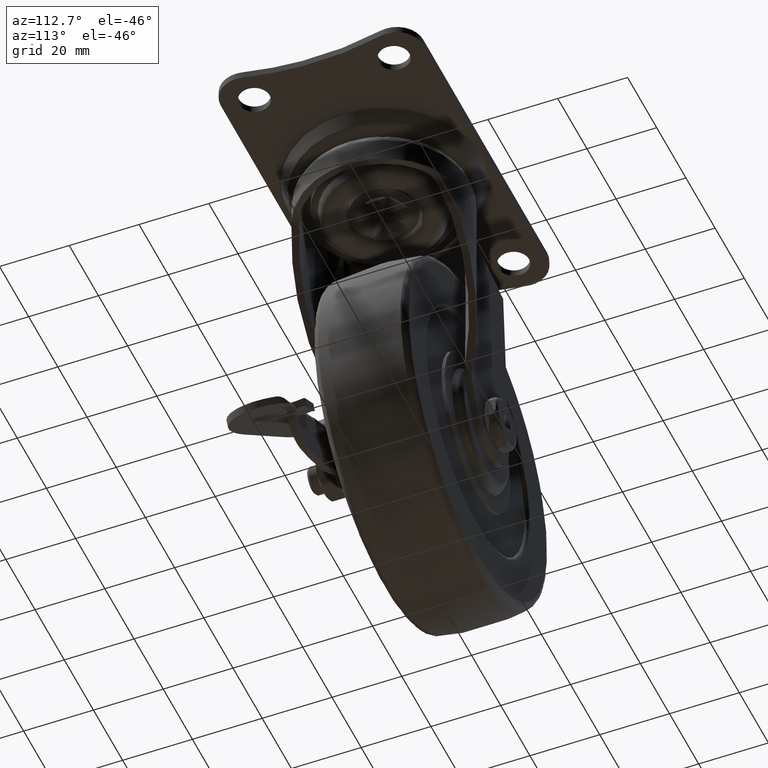
[diagram: clean part render]
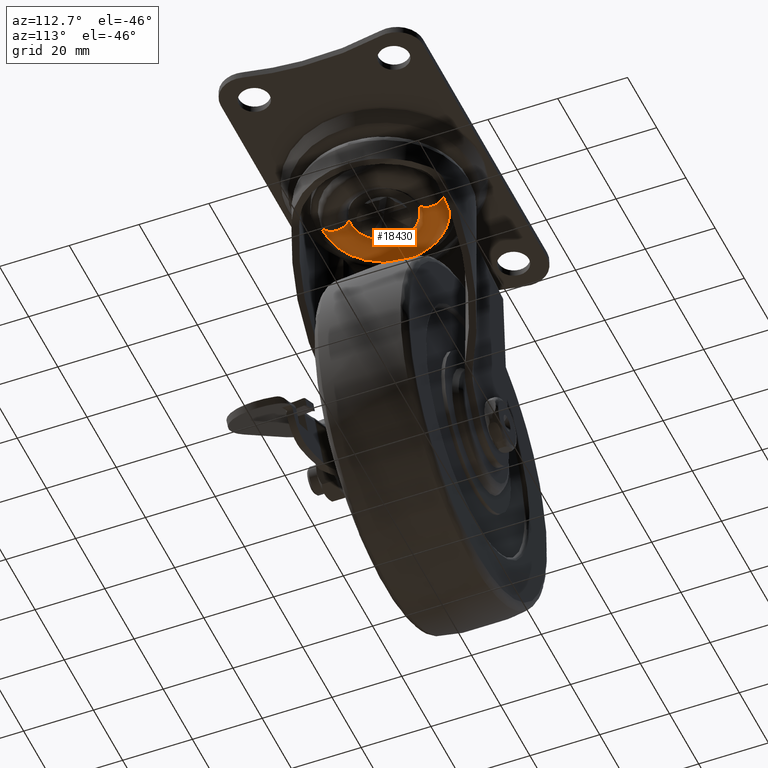
[diagram: same view with one face highlighted and labeled with its STEP entity id]
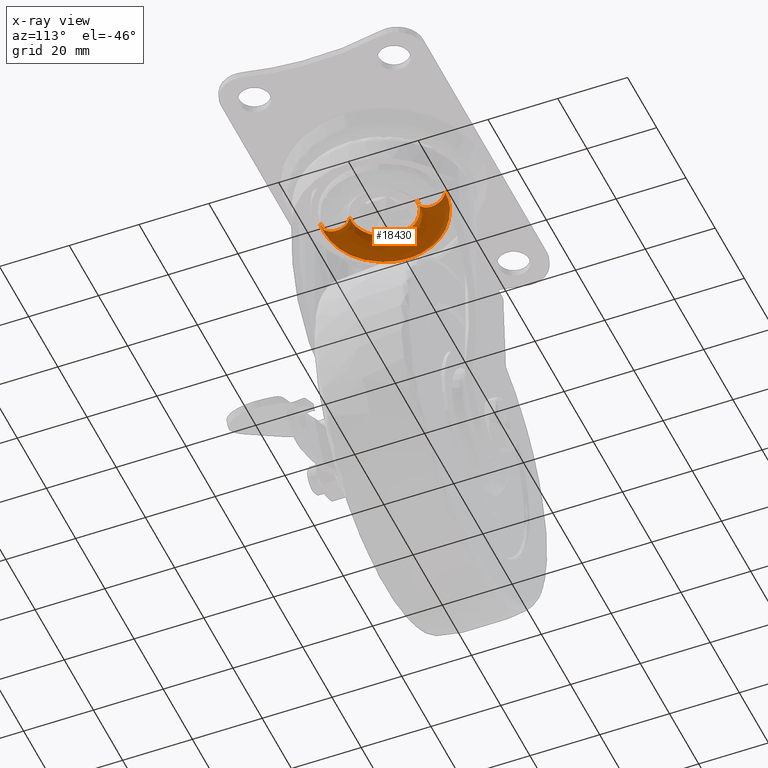
[diagram: x-ray of the same camera — body ghosted, the highlighted face saturated]
A machine part, auxiliary view. The second image highlights one B-rep face of the part: STEP entity #18430.
The next image is the same camera in x-ray: the body ghosted, the highlighted face saturated — about 0% of this face is hidden behind the body in this view.
In plain terms, the highlighted face is a freeform B-spline surface patch.
Its self-contained STEP definition (entity closure, byte-faithful):
#16914=CARTESIAN_POINT('',(1.096910178924417,-9.436460568421403,-10.856458607864729));
#16915=VERTEX_POINT('',#16914);
#16928=CARTESIAN_POINT('',(-9.500000000000000,0.0,-10.856458606340780));
#16929=VERTEX_POINT('',#16928);
#16930=CARTESIAN_POINT('',(1.096910178924417,-9.436460568421403,-10.856458607864729));
#16931=CARTESIAN_POINT('',(0.433806705841115,-9.513643669606774,-10.856458607696510));
#16932=CARTESIAN_POINT('',(-0.908702483922721,-9.527312527862414,-10.856458607371479));
#16933=CARTESIAN_POINT('',(-3.087954147946902,-9.084762200711287,-10.856458606894630));
#16934=CARTESIAN_POINT('',(-5.027681520262251,-8.161387402826501,-10.856458606527911));
#16935=CARTESIAN_POINT('',(-6.696183774813495,-6.826085942723399,-10.856458606271570));
#16936=CARTESIAN_POINT('',(-7.937099217530413,-5.347930811458096,-10.856458606133859));
#16937=CARTESIAN_POINT('',(-8.762451307669638,-3.791012916026203,-10.856458606104781));
#16938=CARTESIAN_POINT('',(-9.347627061322113,-2.002644271410746,-10.856458606158940));
#16939=CARTESIAN_POINT('',(-9.500213509888807,-0.792774197366464,-10.856458606254231));
#16940=CARTESIAN_POINT('',(-9.500000000000000,0.0,-10.856458606340780));
#16941=B_SPLINE_CURVE_WITH_KNOTS('',3,(#16930,#16931,#16932,#16933,#16934,#16935,#16936,#16937,#16938,#16939,#16940),.UNSPECIFIED.,.F.,.U.,(4,1,1,1,1,1,1,1,4),(0.000000364046763,2.002739347382198,4.005511391347561,6.634137316506054,8.386510160482072,10.389288579385971,12.392054216814250,13.643776463225240,16.022043243262779),.UNSPECIFIED.);
#16942=EDGE_CURVE('',#16915,#16929,#16941,.T.);
#16944=CARTESIAN_POINT('',(-6.891056670542266,6.539368315317225,-10.856458606762979));
#16945=VERTEX_POINT('',#16944);
#16946=CARTESIAN_POINT('',(-9.500000000000000,0.0,-10.856458606340780));
#16947=CARTESIAN_POINT('',(-9.500677692659250,1.051957678140493,-10.856458606340681));
#16948=CARTESIAN_POINT('',(-9.241496608592213,2.591645774393123,-10.856458606382610));
#16949=CARTESIAN_POINT('',(-8.281746328049433,4.803850516287427,-10.856458606537940));
#16950=CARTESIAN_POINT('',(-7.486074267554306,5.912839166307723,-10.856458606666680));
#16951=CARTESIAN_POINT('',(-6.891056670542266,6.539368315317225,-10.856458606762979));
#16952=B_SPLINE_CURVE_WITH_KNOTS('',3,(#16946,#16947,#16948,#16949,#16950,#16951),.UNSPECIFIED.,.F.,.U.,(4,1,1,4),(0.000000072078786,3.155547357089797,4.620576116975163,7.212615211045926),.UNSPECIFIED.);
#16953=EDGE_CURVE('',#16929,#16945,#16952,.T.);
#17037=CARTESIAN_POINT('',(0.0,9.499999999999998,-10.856458607878130));
#17038=VERTEX_POINT('',#17037);
#17039=CARTESIAN_POINT('',(-6.891056670542266,6.539368315317225,-10.856458606762979));
#17040=CARTESIAN_POINT('',(-6.393590705743936,7.063768734796915,-10.856458606843470));
#17041=CARTESIAN_POINT('',(-5.247228022841173,8.024137877050455,-10.856458607029010));
#17042=CARTESIAN_POINT('',(-2.930995664980915,9.180227843332780,-10.856458607403811));
#17043=CARTESIAN_POINT('',(-1.084311834286285,9.500741685070391,-10.856458607702670));
#17044=CARTESIAN_POINT('',(0.0,9.499999999999998,-10.856458607878130));
#17045=B_SPLINE_CURVE_WITH_KNOTS('',3,(#17039,#17040,#17041,#17042,#17043,#17044),.UNSPECIFIED.,.F.,.U.,(4,1,1,4),(0.000000088968164,2.168455288905527,4.457366028526755,7.710043838232872),.UNSPECIFIED.);
#17046=EDGE_CURVE('',#16945,#17038,#17045,.T.);
#18297=CARTESIAN_POINT('',(2.015957036716513,-17.342821826546345,-10.289372994206584));
#18298=CARTESIAN_POINT('',(1.011360684563049,-17.459597695285517,-10.289372994206586));
#18299=CARTESIAN_POINT('',(2.138113E-015,-17.459597695285520,-10.289372994206593));
#18300=CARTESIAN_POINT('',(-17.459597695285506,-17.459597695285520,-10.289372994206587));
#18301=CARTESIAN_POINT('',(-17.459597695285520,-3.207170E-015,-10.289372994206593));
#18302=CARTESIAN_POINT('',(-17.459597695285520,17.459597695285506,-10.289372994206587));
#18303=CARTESIAN_POINT('',(-4.276227E-015,17.459597695285520,-10.289372994206593));
#18304=CARTESIAN_POINT('',(2.091961940510952,-17.996674800812936,-14.885552774383346));
#18305=CARTESIAN_POINT('',(1.049490649702034,-18.117853312320456,-14.885552774383337));
#18306=CARTESIAN_POINT('',(2.218724E-015,-18.117853312320459,-14.885552774383338));
#18307=CARTESIAN_POINT('',(-18.117853312320456,-18.117853312320467,-14.885552774383342));
#18308=CARTESIAN_POINT('',(-18.117853312320459,-3.328086E-015,-14.885552774383338));
#18309=CARTESIAN_POINT('',(-18.117853312320467,18.117853312320452,-14.885552774383342));
#18310=CARTESIAN_POINT('',(-4.437448E-015,18.117853312320459,-14.885552774383338));
#18311=CARTESIAN_POINT('',(1.555863673184619,-13.384742818917124,-14.856379649765332));
#18312=CARTESIAN_POINT('',(0.780542105282996,-13.474867424137761,-14.856379649765325));
#18313=CARTESIAN_POINT('',(1.650141E-015,-13.474867424137759,-14.856379649765330));
#18314=CARTESIAN_POINT('',(-13.474867424137756,-13.474867424137761,-14.856379649765326));
#18315=CARTESIAN_POINT('',(-13.474867424137759,-2.475211E-015,-14.856379649765330));
#18316=CARTESIAN_POINT('',(-13.474867424137761,13.474867424137756,-14.856379649765326));
#18317=CARTESIAN_POINT('',(-3.300282E-015,13.474867424137759,-14.856379649765330));
#18318=CARTESIAN_POINT('',(1.026152373849562,-8.827756476172896,-14.827554087944097));
#18319=CARTESIAN_POINT('',(0.514797760260220,-8.887197145161663,-14.827554087944096));
#18320=CARTESIAN_POINT('',(1.088332E-015,-8.887197145161661,-14.827554087944096));
#18321=CARTESIAN_POINT('',(-8.887197145161659,-8.887197145161661,-14.827554087944092));
#18322=CARTESIAN_POINT('',(-8.887197145161661,-1.632498E-015,-14.827554087944096));
#18323=CARTESIAN_POINT('',(-8.887197145161661,8.887197145161659,-14.827554087944092));
#18324=CARTESIAN_POINT('',(-2.176664E-015,8.887197145161661,-14.827554087944096));
#18325=CARTESIAN_POINT('',(1.101620259317854,-9.476989603399922,-10.286590484655814));
#18326=CARTESIAN_POINT('',(0.552658315281795,-9.540801807955647,-10.286590484655807));
#18327=CARTESIAN_POINT('',(1.168373E-015,-9.540801807955647,-10.286590484655811));
#18328=CARTESIAN_POINT('',(-9.540801807955642,-9.540801807955644,-10.286590484655806));
#18329=CARTESIAN_POINT('',(-9.540801807955647,-1.752559E-015,-10.286590484655811));
#18330=CARTESIAN_POINT('',(-9.540801807955646,9.540801807955640,-10.286590484655806));
#18331=CARTESIAN_POINT('',(-2.336745E-015,9.540801807955647,-10.286590484655811));
#18339=(BOUNDED_SURFACE()B_SPLINE_SURFACE(2,2,((#18297,#18304,#18311,#18318,#18325),(#18298,#18305,#18312,#18319,#18326),(#18299,#18306,#18313,#18320,#18327),(#18300,#18307,#18314,#18321,#18328),(#18301,#18308,#18315,#18322,#18329),(#18302,#18309,#18316,#18323,#18330),(#18303,#18310,#18317,#18324,#18331)),.UNSPECIFIED.,.F.,.F.,.U.)B_SPLINE_SURFACE_WITH_KNOTS((3,2,2,3),(3,2,3),(0.0,2.314238483836985,31.242247119698160,60.170255755559332),(0.0,7.334580549908983,14.612294680653100),.UNSPECIFIED.)GEOMETRIC_REPRESENTATION_ITEM()RATIONAL_B_SPLINE_SURFACE(((0.943312250124600,0.620105606705500,0.956886155731908,0.622716731327718,0.938340156254263),(0.962715454479957,0.632860700055788,0.976568564840903,0.635525533494610,0.957641088479234),(0.985814503087960,0.648045332238285,1.0,0.650774104732878,0.980618384573178),(0.697076120125543,0.458237248941981,0.707106781186548,0.460166782477223,0.693401909487892),(0.985814503087960,0.648045332238285,1.0,0.650774104732878,0.980618384573178),(0.697076120125543,0.458237248941981,0.707106781186548,0.460166782477223,0.693401909487892),(0.985814503087960,0.648045332238285,1.0,0.650774104732878,0.980618384573178)))REPRESENTATION_ITEM('')SURFACE());
#18340=CARTESIAN_POINT('',(2.020624013470560,-17.382953678710241,-10.856458608822400));
#18341=VERTEX_POINT('',#18340);
#18342=CARTESIAN_POINT('',(-17.500000000000000,0.0,-10.856458606340780));
#18343=VERTEX_POINT('',#18342);
#18344=CARTESIAN_POINT('',(2.020624013470560,-17.382953678710241,-10.856458608822400));
#18345=CARTESIAN_POINT('',(1.028151105472896,-17.498365166153661,-10.856458608599540));
#18346=CARTESIAN_POINT('',(-1.207979186934880,-17.565714317736930,-10.856458608116091));
#18347=CARTESIAN_POINT('',(-4.488352884600815,-17.033063559664349,-10.856458607467919));
#18348=CARTESIAN_POINT('',(-7.596284778410000,-15.868092577039260,-10.856458606917800));
#18349=CARTESIAN_POINT('',(-9.983165300864030,-14.448584340583659,-10.856458606545960));
#18350=CARTESIAN_POINT('',(-12.076193953587220,-12.751133092505160,-10.856458606263841));
#18351=CARTESIAN_POINT('',(-13.748755927725410,-10.935632879159391,-10.856458606082811));
#18352=CARTESIAN_POINT('',(-15.255206691739531,-8.699823099745570,-10.856458605977670));
#18353=CARTESIAN_POINT('',(-16.257048776338131,-6.615059372864743,-10.856458605965830));
#18354=CARTESIAN_POINT('',(-17.214538397561281,-3.689040795351783,-10.856458606044740));
#18355=CARTESIAN_POINT('',(-17.500546141447192,-1.537263471562658,-10.856458606191840));
#18356=CARTESIAN_POINT('',(-17.500000000000000,0.0,-10.856458606340780));
#18357=B_SPLINE_CURVE_WITH_KNOTS('',3,(#18344,#18345,#18346,#18347,#18348,#18349,#18350,#18351,#18352,#18353,#18354,#18355,#18356),.UNSPECIFIED.,.F.,.U.,(4,1,1,1,1,1,1,1,1,1,4),(0.000000197870953,2.997520725441234,6.686823100061059,9.914966738309254,12.912526777369671,14.987677063701920,17.985261657981081,20.291048408429230,23.058052672945490,24.902683853555100,29.514290184570640),.UNSPECIFIED.);
#18358=EDGE_CURVE('',#18341,#18343,#18357,.T.);
#18359=ORIENTED_EDGE('',*,*,#18358,.T.);
#18360=CARTESIAN_POINT('',(-2.220446E-013,17.500000000000000,-10.856458608831360));
#18361=VERTEX_POINT('',#18360);
#18362=CARTESIAN_POINT('',(-17.500000000000000,0.0,-10.856458606340780));
#18363=CARTESIAN_POINT('',(-17.500095503806030,1.145347490360425,-10.856458606340750));
#18364=CARTESIAN_POINT('',(-17.246313700630850,3.722483894629098,-10.856458606376901));
#18365=CARTESIAN_POINT('',(-16.160431125347330,7.009747621282999,-10.856458606531429));
#18366=CARTESIAN_POINT('',(-14.426563135175680,10.070025844522990,-10.856458606778180));
#18367=CARTESIAN_POINT('',(-12.586583454856139,12.284282899461990,-10.856458607040040));
#18368=CARTESIAN_POINT('',(-10.347246802629520,14.191908022090770,-10.856458607358761));
#18369=CARTESIAN_POINT('',(-7.911032705771363,15.713928495366689,-10.856458607705500));
#18370=CARTESIAN_POINT('',(-4.438018605976128,17.102944794122511,-10.856458608199620));
#18371=CARTESIAN_POINT('',(-1.646544592775836,17.500658468747851,-10.856458608597221));
#18372=CARTESIAN_POINT('',(-2.220446E-013,17.500000000000000,-10.856458608831360));
#18373=B_SPLINE_CURVE_WITH_KNOTS('',3,(#18362,#18363,#18364,#18365,#18366,#18367,#18368,#18369,#18370,#18371,#18372),.UNSPECIFIED.,.F.,.U.,(4,1,1,1,1,1,1,1,4),(0.000000218042167,3.436085410891344,7.731313799853059,10.308464977781259,13.959248955225180,16.321591104125272,19.113497150480480,22.549665352245380,27.489108200321940),.UNSPECIFIED.);
#18374=EDGE_CURVE('',#18343,#18361,#18373,.T.);
#18375=ORIENTED_EDGE('',*,*,#18374,.T.);
#18376=CARTESIAN_POINT('',(-4.313082E-018,13.499877019181231,-14.856458604450200));
#18377=VERTEX_POINT('',#18376);
#18378=CARTESIAN_POINT('',(-2.220446E-013,17.500000000000000,-10.856458608831360));
#18379=CARTESIAN_POINT('',(-2.111499E-013,17.500173105331640,-11.249182981102990));
#18380=CARTESIAN_POINT('',(-1.902843E-013,17.402757812011991,-11.903575612610290));
#18381=CARTESIAN_POINT('',(-1.557022E-013,17.037787121233801,-12.784615540369860));
#18382=CARTESIAN_POINT('',(-1.226694E-013,16.553493174008430,-13.490503579294240));
#18383=CARTESIAN_POINT('',(-8.909196E-014,15.926271079024220,-14.073077542603230));
#18384=CARTESIAN_POINT('',(-4.526679E-014,14.939165691070910,-14.664981306443741));
#18385=CARTESIAN_POINT('',(-1.633217E-014,14.089153314231590,-14.857461792296601));
#18386=CARTESIAN_POINT('',(-4.313082E-018,13.499877019181231,-14.856458604450200));
#18387=B_SPLINE_CURVE_WITH_KNOTS('',3,(#18378,#18379,#18380,#18381,#18382,#18383,#18384,#18385,#18386),.UNSPECIFIED.,.F.,.U.,(4,1,1,1,1,1,4),(0.000000407511354,1.178136358477792,1.963570429336876,2.847240597059282,3.730710419986361,4.516188979467128,6.283412290927938),.UNSPECIFIED.);
#18388=EDGE_CURVE('',#18361,#18377,#18387,.T.);
#18389=ORIENTED_EDGE('',*,*,#18388,.T.);
#18390=CARTESIAN_POINT('',(-4.313082E-018,13.499877019181231,-14.856458604450200));
#18391=CARTESIAN_POINT('',(1.546218E-014,12.943406724088019,-14.857227538760700));
#18392=CARTESIAN_POINT('',(3.402815E-014,12.093206374062429,-14.675924089088911));
#18393=CARTESIAN_POINT('',(4.555165E-014,11.097658852286660,-14.095514103925201));
#18394=CARTESIAN_POINT('',(4.698323E-014,10.373920274660600,-13.423306794931481));
#18395=CARTESIAN_POINT('',(3.617943E-014,9.701284756504984,-12.361349579963139));
#18396=CARTESIAN_POINT('',(1.546294E-014,9.499278866200630,-11.412887397804530));
#18397=CARTESIAN_POINT('',(0.0,9.499999999999998,-10.856458607878130));
#18398=B_SPLINE_CURVE_WITH_KNOTS('',3,(#18390,#18391,#18392,#18393,#18394,#18395,#18396,#18397),.UNSPECIFIED.,.F.,.U.,(4,1,1,1,1,4),(0.000000575753852,1.668999170140961,2.552646154614625,3.436096259066534,4.614275013391005,6.283273659960530),.UNSPECIFIED.);
#18399=EDGE_CURVE('',#18377,#17038,#18398,.T.);
#18400=ORIENTED_EDGE('',*,*,#18399,.T.);
#18401=ORIENTED_EDGE('',*,*,#17046,.F.);
#18402=ORIENTED_EDGE('',*,*,#16953,.F.);
#18403=ORIENTED_EDGE('',*,*,#16942,.F.);
#18404=CARTESIAN_POINT('',(1.558752896029731,-13.409584965317290,-14.856458604450189));
#18405=VERTEX_POINT('',#18404);
#18406=CARTESIAN_POINT('',(1.558752896029731,-13.409584965317290,-14.856458604450189));
#18407=CARTESIAN_POINT('',(1.494508479330834,-12.856905341413180,-14.857049270021870));
#18408=CARTESIAN_POINT('',(1.384988156296938,-11.914727731864190,-14.655273846931880));
#18409=CARTESIAN_POINT('',(1.262379633679182,-10.859955415819551,-13.982432300852560));
#18410=CARTESIAN_POINT('',(1.171803428770354,-10.080749603559410,-13.138175481188060));
#18411=CARTESIAN_POINT('',(1.111465787068118,-9.561679046493548,-12.100057324599669));
#18412=CARTESIAN_POINT('',(1.096899148152824,-9.436365673526218,-11.249139299937530));
#18413=CARTESIAN_POINT('',(1.096910178924417,-9.436460568421403,-10.856458607864729));
#18414=B_SPLINE_CURVE_WITH_KNOTS('',3,(#18406,#18407,#18408,#18409,#18410,#18411,#18412,#18413),.UNSPECIFIED.,.F.,.U.,(4,1,1,1,1,4),(0.000000575755393,1.668999170143281,2.847177813095393,3.730628056666796,5.105163700520910,6.283273659966537),.UNSPECIFIED.);
#18415=EDGE_CURVE('',#18405,#16915,#18414,.T.);
#18416=ORIENTED_EDGE('',*,*,#18415,.F.);
#18417=CARTESIAN_POINT('',(2.020624013470560,-17.382953678710241,-10.856458608822400));
#18418=CARTESIAN_POINT('',(2.020637409855826,-17.383068924906851,-11.249161679311570));
#18419=CARTESIAN_POINT('',(2.006055373218743,-17.257623090002362,-12.100027760321341));
#18420=CARTESIAN_POINT('',(1.940548766485860,-16.694085142454981,-13.227265597891410));
#18421=CARTESIAN_POINT('',(1.832490868219548,-15.764488430312880,-14.162976792138680));
#18422=CARTESIAN_POINT('',(1.702345810439118,-14.644881073586079,-14.730368381400110));
#18423=CARTESIAN_POINT('',(1.604095207541360,-13.799654218971840,-14.856594271750820));
#18424=CARTESIAN_POINT('',(1.558752896029731,-13.409584965317290,-14.856458604450189));
#18425=B_SPLINE_CURVE_WITH_KNOTS('',3,(#18417,#18418,#18419,#18420,#18421,#18422,#18423,#18424),.UNSPECIFIED.,.F.,.U.,(4,1,1,1,1,4),(0.000000407510422,1.178136358478314,2.552702303045547,3.730710419990133,5.105276397826717,6.283412290934504),.UNSPECIFIED.);
#18426=EDGE_CURVE('',#18341,#18405,#18425,.T.);
#18427=ORIENTED_EDGE('',*,*,#18426,.F.);
#18428=EDGE_LOOP('',(#18359,#18375,#18389,#18400,#18401,#18402,#18403,#18416,#18427));
#18429=FACE_OUTER_BOUND('',#18428,.T.);
#18430=ADVANCED_FACE('',(#18429),#18339,.T.);